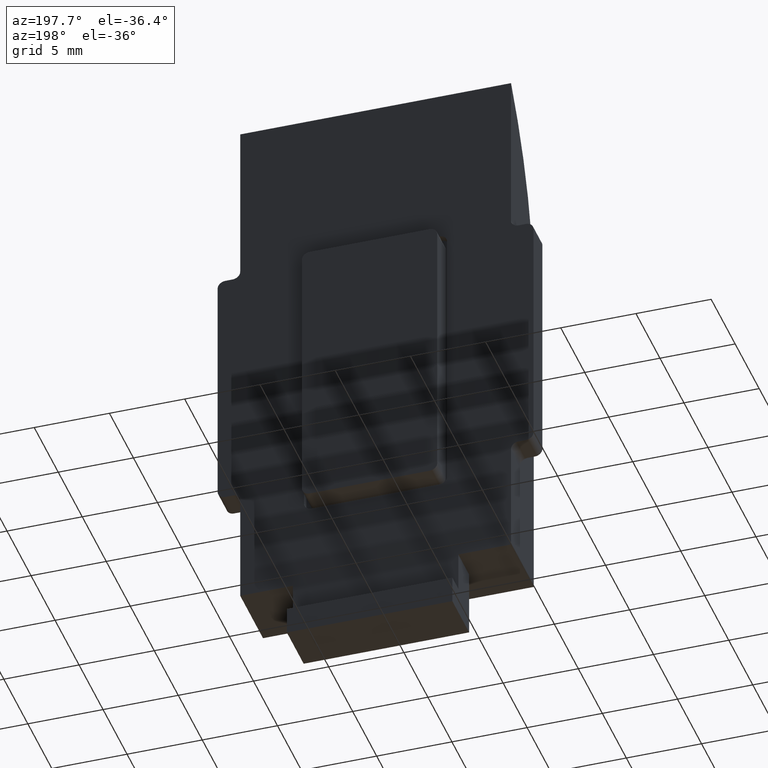
[diagram: clean part render]
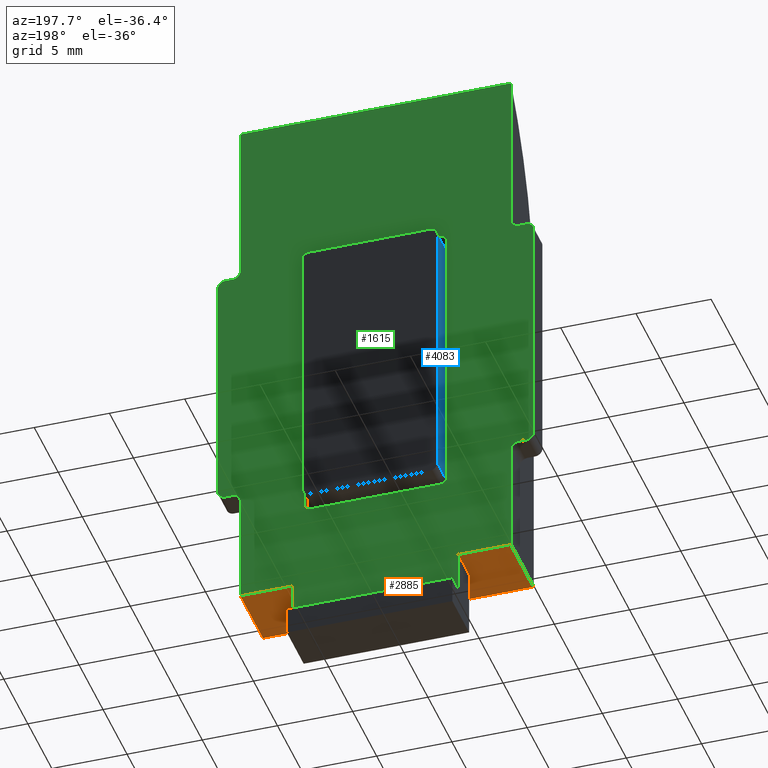
[diagram: same view with three faces highlighted in distinct colors, each labeled with its STEP entity id]
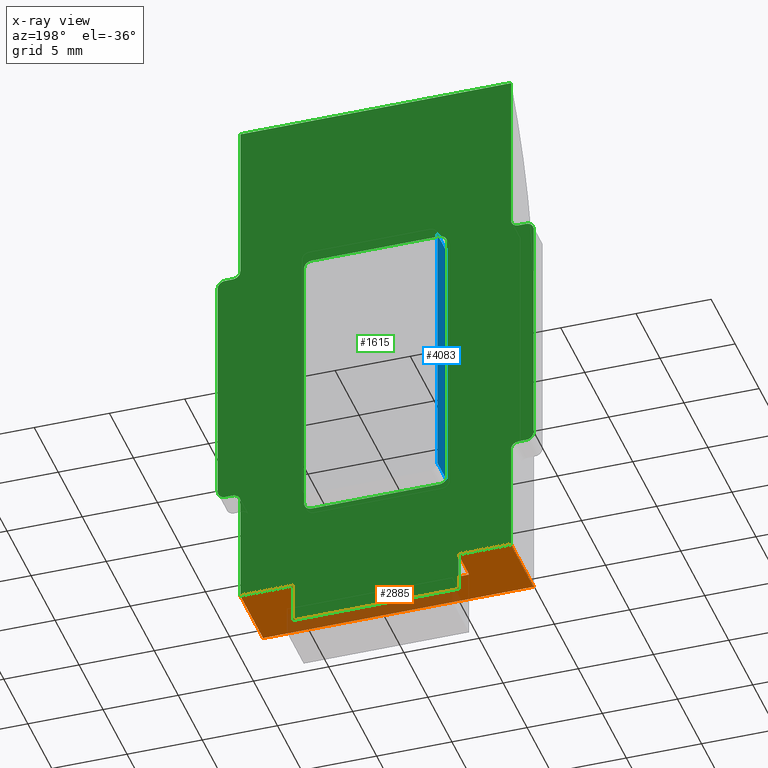
[diagram: x-ray of the same camera — body ghosted, the three highlighted faces saturated]
A machine part, auxiliary view with three faces highlighted in distinct colors.
The next image is the same camera in x-ray (body ghosted, the three faces saturated) — at least one of them is partly hidden behind the body in this view.
Their STEP definitions:

[orange] entity #2885 — the highlighted planar face has unit normal (0, 0, -1).
#481 = LINE ( 'NONE', #4974, #16344 ) ;
#509 = CARTESIAN_POINT ( 'NONE',  ( -9.000000000000000000, 4.750000000000001776, -2.081668171172168513E-14 ) ) ;
#701 = EDGE_CURVE ( 'NONE', #2868, #7485, #3738, .T. ) ;
#702 = CARTESIAN_POINT ( 'NONE',  ( 9.000000000000000000, -1.040834085586084257E-14, -2.081668171172168513E-14 ) ) ;
#1002 = EDGE_CURVE ( 'NONE', #3693, #3340, #9285, .T. ) ;
#1040 = ORIENTED_EDGE ( 'NONE', *, *, #1002, .F. ) ;
#1165 = ORIENTED_EDGE ( 'NONE', *, *, #1958, .T. ) ;
#1383 = LINE ( 'NONE', #5969, #11896 ) ;
#1570 = VECTOR ( 'NONE', #7535, 1000.000000000000000 ) ;
#1958 = EDGE_CURVE ( 'NONE', #3693, #13120, #481, .T. ) ;
#2824 = EDGE_CURVE ( 'NONE', #13120, #8429, #12193, .T. ) ;
#2868 = VERTEX_POINT ( 'NONE', #509 ) ;
#2885 = ADVANCED_FACE ( 'NONE', ( #16271 ), #11357, .T. ) ;
#3307 = VECTOR ( 'NONE', #15276, 1000.000000000000000 ) ;
#3340 = VERTEX_POINT ( 'NONE', #13775 ) ;
#3693 = VERTEX_POINT ( 'NONE', #9387 ) ;
#3738 = LINE ( 'NONE', #12935, #1570 ) ;
#3850 = EDGE_LOOP ( 'NONE', ( #8951, #17275, #12400, #1040, #1165, #9771, #11935, #11875 ) ) ;
#3880 = DIRECTION ( 'NONE',  ( -0.000000000000000000, 1.000000000000000000, 1.734723475976807094E-16 ) ) ;
#4051 = VECTOR ( 'NONE', #5568, 1000.000000000000000 ) ;
#4345 = DIRECTION ( 'NONE',  ( 1.000000000000000000, 0.000000000000000000, 0.000000000000000000 ) ) ;
#4526 = EDGE_CURVE ( 'NONE', #3340, #10327, #15337, .T. ) ;
#4589 = VECTOR ( 'NONE', #17804, 1000.000000000000000 ) ;
#4974 = CARTESIAN_POINT ( 'NONE',  ( 5.499999999999998224, -3.035766082959412415E-15, -2.081668171172168513E-14 ) ) ;
#5195 = CARTESIAN_POINT ( 'NONE',  ( 9.000000000000000000, 2.499999999999989342, -2.081668171172168513E-14 ) ) ;
#5537 = CARTESIAN_POINT ( 'NONE',  ( -9.000000000000000000, -1.040834085586084257E-14, -2.081668171172168513E-14 ) ) ;
#5568 = DIRECTION ( 'NONE',  ( 0.000000000000000000, -1.000000000000000000, -1.734723475976807094E-16 ) ) ;
#5969 = CARTESIAN_POINT ( 'NONE',  ( 9.000000000000000000, 4.750000000000001776, -2.081668171172168513E-14 ) ) ;
#6161 = DIRECTION ( 'NONE',  ( 0.000000000000000000, 1.000000000000000000, 1.734723475976807094E-16 ) ) ;
#6309 = CARTESIAN_POINT ( 'NONE',  ( -5.500000000000000000, 4.750000000000001776, -2.081668171172168513E-14 ) ) ;
#6794 = AXIS2_PLACEMENT_3D ( 'NONE', #12905, #11472, #6161 ) ;
#6948 = LINE ( 'NONE', #14081, #3307 ) ;
#7485 = VERTEX_POINT ( 'NONE', #5537 ) ;
#7535 = DIRECTION ( 'NONE',  ( 0.000000000000000000, -1.000000000000000000, -1.734723475976807094E-16 ) ) ;
#8361 = EDGE_CURVE ( 'NONE', #2868, #10327, #1383, .T. ) ;
#8429 = VERTEX_POINT ( 'NONE', #11546 ) ;
#8951 = ORIENTED_EDGE ( 'NONE', *, *, #701, .F. ) ;
#9285 = LINE ( 'NONE', #5195, #4589 ) ;
#9387 = CARTESIAN_POINT ( 'NONE',  ( 5.500000000000000000, 2.499999999999987566, -2.081668171172168513E-14 ) ) ;
#9771 = ORIENTED_EDGE ( 'NONE', *, *, #2824, .T. ) ;
#10327 = VERTEX_POINT ( 'NONE', #6309 ) ;
#10721 = CARTESIAN_POINT ( 'NONE',  ( 5.499999999999999112, 4.750000000000001776, -2.081668171172168513E-14 ) ) ;
#10806 = CARTESIAN_POINT ( 'NONE',  ( -5.500000000000000000, -1.734723475976807094E-15, -2.081668171172168513E-14 ) ) ;
#11357 = PLANE ( 'NONE',  #6794 ) ;
#11472 = DIRECTION ( 'NONE',  ( 0.000000000000000000, 1.734723475976807094E-16, -1.000000000000000000 ) ) ;
#11546 = CARTESIAN_POINT ( 'NONE',  ( 9.000000000000000000, 4.750000000000001776, -2.081668171172168513E-14 ) ) ;
#11875 = ORIENTED_EDGE ( 'NONE', *, *, #14453, .T. ) ;
#11896 = VECTOR ( 'NONE', #4345, 1000.000000000000000 ) ;
#11935 = ORIENTED_EDGE ( 'NONE', *, *, #12267, .T. ) ;
#12193 = LINE ( 'NONE', #16737, #16687 ) ;
#12267 = EDGE_CURVE ( 'NONE', #8429, #15376, #16694, .T. ) ;
#12400 = ORIENTED_EDGE ( 'NONE', *, *, #4526, .F. ) ;
#12905 = CARTESIAN_POINT ( 'NONE',  ( 9.000000000000000000, 0.000000000000000000, -2.081668171172168513E-14 ) ) ;
#12935 = CARTESIAN_POINT ( 'NONE',  ( -9.000000000000000000, 0.000000000000000000, -2.081668171172168513E-14 ) ) ;
#13120 = VERTEX_POINT ( 'NONE', #10721 ) ;
#13775 = CARTESIAN_POINT ( 'NONE',  ( -5.500000000000000000, 2.499999999999987566, -2.081668171172168513E-14 ) ) ;
#14081 = CARTESIAN_POINT ( 'NONE',  ( 9.000000000000000000, -1.040834085586084257E-14, -2.081668171172168513E-14 ) ) ;
#14453 = EDGE_CURVE ( 'NONE', #15376, #7485, #6948, .T. ) ;
#14477 = DIRECTION ( 'NONE',  ( 2.478176394252582127E-16, 1.000000000000000000, 1.734723475976807094E-16 ) ) ;
#15276 = DIRECTION ( 'NONE',  ( -1.000000000000000000, -0.000000000000000000, -0.000000000000000000 ) ) ;
#15337 = LINE ( 'NONE', #10806, #16653 ) ;
#15376 = VERTEX_POINT ( 'NONE', #702 ) ;
#16271 = FACE_OUTER_BOUND ( 'NONE', #3850, .T. ) ;
#16344 = VECTOR ( 'NONE', #14477, 1000.000000000000000 ) ;
#16653 = VECTOR ( 'NONE', #3880, 1000.000000000000000 ) ;
#16682 = DIRECTION ( 'NONE',  ( 1.000000000000000000, 0.000000000000000000, 0.000000000000000000 ) ) ;
#16687 = VECTOR ( 'NONE', #16682, 1000.000000000000000 ) ;
#16694 = LINE ( 'NONE', #16713, #4051 ) ;
#16713 = CARTESIAN_POINT ( 'NONE',  ( 9.000000000000000000, 0.000000000000000000, -2.081668171172168513E-14 ) ) ;
#16737 = CARTESIAN_POINT ( 'NONE',  ( 9.000000000000000000, 4.750000000000001776, -2.081668171172168513E-14 ) ) ;
#17275 = ORIENTED_EDGE ( 'NONE', *, *, #8361, .T. ) ;
#17804 = DIRECTION ( 'NONE',  ( -1.000000000000000000, -0.000000000000000000, -0.000000000000000000 ) ) ;

[blue] entity #4083 — the highlighted planar face has unit normal (1, 0, 0).
#72 = EDGE_CURVE ( 'NONE', #449, #2540, #15301, .T. ) ;
#102 = LINE ( 'NONE', #10053, #14220 ) ;
#449 = VERTEX_POINT ( 'NONE', #10130 ) ;
#1445 = DIRECTION ( 'NONE',  ( -0.000000000000000000, -0.000000000000000000, 1.000000000000000000 ) ) ;
#2295 = DIRECTION ( 'NONE',  ( 0.000000000000000000, 0.000000000000000000, 1.000000000000000000 ) ) ;
#2380 = CARTESIAN_POINT ( 'NONE',  ( 18.50000000000000000, 0.000000000000000000, 0.000000000000000000 ) ) ;
#2540 = VERTEX_POINT ( 'NONE', #2380 ) ;
#2641 = CARTESIAN_POINT ( 'NONE',  ( 18.50000000000000000, 0.000000000000000000, 1.750000000000001554 ) ) ;
#3442 = EDGE_LOOP ( 'NONE', ( #3901, #7501, #12306, #7272 ) ) ;
#3901 = ORIENTED_EDGE ( 'NONE', *, *, #72, .T. ) ;
#4083 = ADVANCED_FACE ( 'NONE', ( #12384 ), #14480, .F. ) ;
#5047 = VECTOR ( 'NONE', #17118, 1000.000000000000000 ) ;
#5903 = VERTEX_POINT ( 'NONE', #2641 ) ;
#6310 = CARTESIAN_POINT ( 'NONE',  ( 0.000000000000000000, 0.000000000000000000, 1.749999999999999778 ) ) ;
#7272 = ORIENTED_EDGE ( 'NONE', *, *, #7977, .T. ) ;
#7423 = DIRECTION ( 'NONE',  ( 1.000000000000000000, 0.000000000000000000, 0.000000000000000000 ) ) ;
#7454 = CARTESIAN_POINT ( 'NONE',  ( 0.000000000000000000, 0.000000000000000000, 0.000000000000000000 ) ) ;
#7501 = ORIENTED_EDGE ( 'NONE', *, *, #13539, .T. ) ;
#7977 = EDGE_CURVE ( 'NONE', #10451, #449, #13826, .T. ) ;
#9036 = DIRECTION ( 'NONE',  ( 0.000000000000000000, 1.000000000000000000, 0.000000000000000000 ) ) ;
#10053 = CARTESIAN_POINT ( 'NONE',  ( 0.000000000000000000, 0.000000000000000000, 1.749999999999999778 ) ) ;
#10130 = CARTESIAN_POINT ( 'NONE',  ( 0.5000000000000004441, 0.000000000000000000, 0.000000000000000000 ) ) ;
#10451 = VERTEX_POINT ( 'NONE', #16234 ) ;
#11742 = CARTESIAN_POINT ( 'NONE',  ( 0.5000000000000004441, 0.000000000000000000, 1.749999999999999778 ) ) ;
#11901 = LINE ( 'NONE', #14906, #12739 ) ;
#12306 = ORIENTED_EDGE ( 'NONE', *, *, #13919, .F. ) ;
#12384 = FACE_OUTER_BOUND ( 'NONE', #3442, .T. ) ;
#12739 = VECTOR ( 'NONE', #1445, 1000.000000000000000 ) ;
#13539 = EDGE_CURVE ( 'NONE', #2540, #5903, #11901, .T. ) ;
#13826 = LINE ( 'NONE', #11742, #15311 ) ;
#13919 = EDGE_CURVE ( 'NONE', #10451, #5903, #102, .T. ) ;
#14220 = VECTOR ( 'NONE', #7423, 1000.000000000000000 ) ;
#14480 = PLANE ( 'NONE',  #15016 ) ;
#14906 = CARTESIAN_POINT ( 'NONE',  ( 18.50000000000000000, 0.000000000000000000, 1.750000000000001554 ) ) ;
#15016 = AXIS2_PLACEMENT_3D ( 'NONE', #6310, #9036, #2295 ) ;
#15301 = LINE ( 'NONE', #7454, #5047 ) ;
#15311 = VECTOR ( 'NONE', #15860, 1000.000000000000000 ) ;
#15860 = DIRECTION ( 'NONE',  ( 0.000000000000000000, 0.000000000000000000, -1.000000000000000000 ) ) ;
#16234 = CARTESIAN_POINT ( 'NONE',  ( 0.5000000000000004441, 0.000000000000000000, 1.749999999999999778 ) ) ;
#17118 = DIRECTION ( 'NONE',  ( 1.000000000000000000, 0.000000000000000000, 0.000000000000000000 ) ) ;

[green] entity #1615 — the highlighted planar face has unit normal (0, -1, -0).
#187 = CARTESIAN_POINT ( 'NONE',  ( 9.999999999999998224, 4.749999999999999112, 24.49999999999997513 ) ) ;
#274 = VERTEX_POINT ( 'NONE', #1450 ) ;
#290 = VECTOR ( 'NONE', #16337, 1000.000000000000000 ) ;
#314 = VERTEX_POINT ( 'NONE', #4382 ) ;
#320 = CARTESIAN_POINT ( 'NONE',  ( -4.250000000000000000, 4.750000000000001776, 5.799999999999978506 ) ) ;
#475 = CARTESIAN_POINT ( 'NONE',  ( -9.000000000000000000, 4.749999999999997335, 36.29999999999999716 ) ) ;
#484 = VERTEX_POINT ( 'NONE', #11585 ) ;
#509 = CARTESIAN_POINT ( 'NONE',  ( -9.000000000000000000, 4.750000000000001776, -2.081668171172168513E-14 ) ) ;
#575 = ORIENTED_EDGE ( 'NONE', *, *, #13494, .F. ) ;
#767 = AXIS2_PLACEMENT_3D ( 'NONE', #3194, #9885, #11285 ) ;
#827 = CARTESIAN_POINT ( 'NONE',  ( -9.500000000000000000, 4.749999999999999112, 25.49999999999997868 ) ) ;
#900 = AXIS2_PLACEMENT_3D ( 'NONE', #7383, #1865, #8801 ) ;
#914 = DIRECTION ( 'NONE',  ( 0.000000000000000000, -1.000000000000000000, -1.112002228190260459E-16 ) ) ;
#930 = VECTOR ( 'NONE', #5937, 1000.000000000000000 ) ;
#959 = CIRCLE ( 'NONE', #1093, 0.5000000000000004441 ) ;
#963 = DIRECTION ( 'NONE',  ( 0.000000000000000000, -1.000000000000000000, -1.112002228190260459E-16 ) ) ;
#1000 = EDGE_CURVE ( 'NONE', #9279, #9805, #6098, .T. ) ;
#1093 = AXIS2_PLACEMENT_3D ( 'NONE', #13729, #5534, #15106 ) ;
#1149 = EDGE_CURVE ( 'NONE', #14753, #4298, #9064, .T. ) ;
#1158 = DIRECTION ( 'NONE',  ( 1.047180315457801829E-31, -1.112002228190260459E-16, 1.000000000000000000 ) ) ;
#1383 = LINE ( 'NONE', #5969, #11896 ) ;
#1450 = CARTESIAN_POINT ( 'NONE',  ( 4.249999999999998224, 4.750000000000001776, 5.799999999999978506 ) ) ;
#1547 = CARTESIAN_POINT ( 'NONE',  ( -10.49999999999999822, 4.749999999999995559, 24.49999999999997513 ) ) ;
#1549 = EDGE_CURVE ( 'NONE', #12150, #3029, #9468, .T. ) ;
#1576 = CIRCLE ( 'NONE', #2384, 0.5000000000000004441 ) ;
#1587 = ORIENTED_EDGE ( 'NONE', *, *, #2263, .T. ) ;
#1601 = VECTOR ( 'NONE', #13425, 1000.000000000000000 ) ;
#1615 = ADVANCED_FACE ( 'NONE', ( #16341, #15907 ), #3801, .F. ) ;
#1626 = LINE ( 'NONE', #13249, #12993 ) ;
#1660 = EDGE_CURVE ( 'NONE', #12150, #13120, #14607, .T. ) ;
#1749 = CIRCLE ( 'NONE', #17745, 0.5000000000000004441 ) ;
#1762 = VERTEX_POINT ( 'NONE', #15375 ) ;
#1865 = DIRECTION ( 'NONE',  ( 0.000000000000000000, -1.000000000000000000, -1.112002228190260459E-16 ) ) ;
#2085 = EDGE_LOOP ( 'NONE', ( #7908, #9754, #13382, #2205, #17136, #12368, #8657, #9133 ) ) ;
#2125 = ORIENTED_EDGE ( 'NONE', *, *, #2824, .F. ) ;
#2188 = ORIENTED_EDGE ( 'NONE', *, *, #8361, .F. ) ;
#2205 = ORIENTED_EDGE ( 'NONE', *, *, #12142, .T. ) ;
#2238 = DIRECTION ( 'NONE',  ( -1.000000000000000000, -0.000000000000000000, -0.000000000000000000 ) ) ;
#2263 = EDGE_CURVE ( 'NONE', #7452, #11304, #9211, .T. ) ;
#2270 = ORIENTED_EDGE ( 'NONE', *, *, #17721, .T. ) ;
#2296 = CARTESIAN_POINT ( 'NONE',  ( -10.49999999999999822, 4.749999999999995559, 8.499999999999976907 ) ) ;
#2353 = DIRECTION ( 'NONE',  ( 0.000000000000000000, 0.000000000000000000, -1.000000000000000000 ) ) ;
#2384 = AXIS2_PLACEMENT_3D ( 'NONE', #187, #15315, #9938 ) ;
#2408 = VERTEX_POINT ( 'NONE', #3339 ) ;
#2438 = LINE ( 'NONE', #13627, #14820 ) ;
#2493 = DIRECTION ( 'NONE',  ( 0.000000000000000000, 0.000000000000000000, 1.000000000000000000 ) ) ;
#2693 = ORIENTED_EDGE ( 'NONE', *, *, #12357, .F. ) ;
#2791 = CARTESIAN_POINT ( 'NONE',  ( 10.49999999999999822, 4.749999999999995559, 24.49999999999997513 ) ) ;
#2808 = ORIENTED_EDGE ( 'NONE', *, *, #16944, .T. ) ;
#2824 = EDGE_CURVE ( 'NONE', #13120, #8429, #12193, .T. ) ;
#2851 = VECTOR ( 'NONE', #13575, 1000.000000000000000 ) ;
#2868 = VERTEX_POINT ( 'NONE', #509 ) ;
#2923 = VECTOR ( 'NONE', #11733, 1000.000000000000000 ) ;
#3029 = VERTEX_POINT ( 'NONE', #3681 ) ;
#3043 = CARTESIAN_POINT ( 'NONE',  ( 10.49999999999999822, 4.749999999999995559, 8.499999999999976907 ) ) ;
#3167 = EDGE_CURVE ( 'NONE', #10099, #314, #13030, .T. ) ;
#3194 = CARTESIAN_POINT ( 'NONE',  ( 9.500000000000000000, 4.749999999999999112, 25.49999999999997868 ) ) ;
#3339 = CARTESIAN_POINT ( 'NONE',  ( 4.249999999999998224, 4.750000000000002665, 25.29999999999997939 ) ) ;
#3372 = ORIENTED_EDGE ( 'NONE', *, *, #16704, .T. ) ;
#3538 = CARTESIAN_POINT ( 'NONE',  ( 9.000000000000000000, 4.750000000000001776, 0.000000000000000000 ) ) ;
#3610 = CARTESIAN_POINT ( 'NONE',  ( 4.249999999999998224, 4.750000000000000888, 6.299999999999979394 ) ) ;
#3678 = ORIENTED_EDGE ( 'NONE', *, *, #15695, .T. ) ;
#3681 = CARTESIAN_POINT ( 'NONE',  ( -5.500000000000000000, 4.750000000000001776, -2.700000000000021938 ) ) ;
#3737 = ORIENTED_EDGE ( 'NONE', *, *, #1000, .F. ) ;
#3767 = ORIENTED_EDGE ( 'NONE', *, *, #1660, .F. ) ;
#3801 = PLANE ( 'NONE',  #4472 ) ;
#3837 = CARTESIAN_POINT ( 'NONE',  ( 9.000000000000000000, 4.750000000000001776, 0.000000000000000000 ) ) ;
#3872 = CARTESIAN_POINT ( 'NONE',  ( -10.49999999999999822, 4.749999999999995559, 7.999999999999976019 ) ) ;
#3944 = LINE ( 'NONE', #13400, #290 ) ;
#4014 = CARTESIAN_POINT ( 'NONE',  ( 9.500000000000000000, 4.749999999999995559, 24.99999999999997868 ) ) ;
#4049 = CARTESIAN_POINT ( 'NONE',  ( 5.500000000000000000, 4.750000000000001776, -2.700000000000021938 ) ) ;
#4298 = VERTEX_POINT ( 'NONE', #9918 ) ;
#4345 = DIRECTION ( 'NONE',  ( 1.000000000000000000, 0.000000000000000000, 0.000000000000000000 ) ) ;
#4382 = CARTESIAN_POINT ( 'NONE',  ( 9.000000000000000000, 4.750000000000000888, 7.499999999999975131 ) ) ;
#4472 = AXIS2_PLACEMENT_3D ( 'NONE', #5114, #914, #12116 ) ;
#4528 = CIRCLE ( 'NONE', #10627, 0.5000000000000004441 ) ;
#4592 = CARTESIAN_POINT ( 'NONE',  ( -9.999999999999998224, 4.750000000000000888, 8.499999999999976907 ) ) ;
#4655 = CARTESIAN_POINT ( 'NONE',  ( -9.000000000000000000, 4.750000000000001776, 0.000000000000000000 ) ) ;
#4790 = LINE ( 'NONE', #5998, #930 ) ;
#4857 = EDGE_CURVE ( 'NONE', #7805, #7403, #14892, .T. ) ;
#4959 = EDGE_CURVE ( 'NONE', #9805, #6198, #1626, .T. ) ;
#4984 = DIRECTION ( 'NONE',  ( 0.000000000000000000, -1.000000000000000000, -1.112002228190260459E-16 ) ) ;
#5110 = ORIENTED_EDGE ( 'NONE', *, *, #14557, .T. ) ;
#5114 = CARTESIAN_POINT ( 'NONE',  ( 9.000000000000000000, 4.750000000000001776, 0.000000000000000000 ) ) ;
#5445 = EDGE_CURVE ( 'NONE', #11304, #14753, #2438, .T. ) ;
#5534 = DIRECTION ( 'NONE',  ( 0.000000000000000000, -1.000000000000000000, -1.112002228190260459E-16 ) ) ;
#5655 = VERTEX_POINT ( 'NONE', #8677 ) ;
#5732 = VECTOR ( 'NONE', #14332, 1000.000000000000000 ) ;
#5789 = DIRECTION ( 'NONE',  ( -0.000000000000000000, 1.000000000000000000, 1.112002228190260459E-16 ) ) ;
#5838 = VECTOR ( 'NONE', #7733, 1000.000000000000000 ) ;
#5900 = VERTEX_POINT ( 'NONE', #9330 ) ;
#5929 = VERTEX_POINT ( 'NONE', #4014 ) ;
#5937 = DIRECTION ( 'NONE',  ( -1.000000000000000000, -0.000000000000000000, -0.000000000000000000 ) ) ;
#5969 = CARTESIAN_POINT ( 'NONE',  ( 9.000000000000000000, 4.750000000000001776, -2.081668171172168513E-14 ) ) ;
#5998 = CARTESIAN_POINT ( 'NONE',  ( -4.750000000000000888, 4.750000000000001776, 5.799999999999978506 ) ) ;
#6098 = LINE ( 'NONE', #3837, #6726 ) ;
#6126 = CARTESIAN_POINT ( 'NONE',  ( -9.000000000000000000, 4.749999999999999112, 25.49999999999997868 ) ) ;
#6142 = ORIENTED_EDGE ( 'NONE', *, *, #13971, .T. ) ;
#6151 = VERTEX_POINT ( 'NONE', #6126 ) ;
#6198 = VERTEX_POINT ( 'NONE', #475 ) ;
#6286 = ORIENTED_EDGE ( 'NONE', *, *, #5445, .T. ) ;
#6309 = CARTESIAN_POINT ( 'NONE',  ( -5.500000000000000000, 4.750000000000001776, -2.081668171172168513E-14 ) ) ;
#6562 = LINE ( 'NONE', #3872, #1601 ) ;
#6615 = EDGE_CURVE ( 'NONE', #2868, #17081, #9798, .T. ) ;
#6621 = CARTESIAN_POINT ( 'NONE',  ( 9.500000000000000000, 4.750000000000000888, 7.499999999999975131 ) ) ;
#6726 = VECTOR ( 'NONE', #13631, 1000.000000000000000 ) ;
#6761 = CARTESIAN_POINT ( 'NONE',  ( 9.999999999999998224, 4.749999999999995559, 7.999999999999976019 ) ) ;
#6780 = CARTESIAN_POINT ( 'NONE',  ( -4.250000000000000000, 4.750000000000002665, 25.29999999999997939 ) ) ;
#6970 = EDGE_CURVE ( 'NONE', #7389, #5900, #12792, .T. ) ;
#7023 = LINE ( 'NONE', #15601, #8505 ) ;
#7061 = AXIS2_PLACEMENT_3D ( 'NONE', #827, #14522, #11849 ) ;
#7341 = DIRECTION ( 'NONE',  ( -0.000000000000000000, 1.000000000000000000, 1.112002228190260459E-16 ) ) ;
#7383 = CARTESIAN_POINT ( 'NONE',  ( -9.500000000000000000, 4.750000000000000888, 7.499999999999975131 ) ) ;
#7389 = VERTEX_POINT ( 'NONE', #17793 ) ;
#7403 = VERTEX_POINT ( 'NONE', #2791 ) ;
#7452 = VERTEX_POINT ( 'NONE', #16507 ) ;
#7503 = ORIENTED_EDGE ( 'NONE', *, *, #4857, .F. ) ;
#7733 = DIRECTION ( 'NONE',  ( -1.000000000000000000, -0.000000000000000000, -0.000000000000000000 ) ) ;
#7774 = CARTESIAN_POINT ( 'NONE',  ( -4.250000000000000000, 4.749999999999999112, 24.79999999999997939 ) ) ;
#7805 = VERTEX_POINT ( 'NONE', #3043 ) ;
#7908 = ORIENTED_EDGE ( 'NONE', *, *, #10209, .F. ) ;
#7969 = DIRECTION ( 'NONE',  ( 0.000000000000000000, -1.000000000000000000, -1.112002228190260459E-16 ) ) ;
#8033 = DIRECTION ( 'NONE',  ( 0.000000000000000000, 0.000000000000000000, -1.000000000000000000 ) ) ;
#8095 = VERTEX_POINT ( 'NONE', #6761 ) ;
#8124 = LINE ( 'NONE', #3538, #13900 ) ;
#8170 = CARTESIAN_POINT ( 'NONE',  ( -4.250000000000000000, 4.750000000000000888, 6.299999999999979394 ) ) ;
#8313 = CARTESIAN_POINT ( 'NONE',  ( 4.749999999999999112, 4.750000000000002665, 24.79999999999997939 ) ) ;
#8333 = AXIS2_PLACEMENT_3D ( 'NONE', #9639, #11028, #9580 ) ;
#8361 = EDGE_CURVE ( 'NONE', #2868, #10327, #1383, .T. ) ;
#8429 = VERTEX_POINT ( 'NONE', #11546 ) ;
#8505 = VECTOR ( 'NONE', #17005, 1000.000000000000000 ) ;
#8657 = ORIENTED_EDGE ( 'NONE', *, *, #6970, .F. ) ;
#8663 = DIRECTION ( 'NONE',  ( 1.000000000000000000, 0.000000000000000000, 0.000000000000000000 ) ) ;
#8675 = LINE ( 'NONE', #15904, #2923 ) ;
#8677 = CARTESIAN_POINT ( 'NONE',  ( 4.749999999999999112, 4.750000000000001776, 6.299999999999979394 ) ) ;
#8801 = DIRECTION ( 'NONE',  ( 0.000000000000000000, 0.000000000000000000, -1.000000000000000000 ) ) ;
#8866 = AXIS2_PLACEMENT_3D ( 'NONE', #3610, #4984, #13354 ) ;
#8901 = EDGE_CURVE ( 'NONE', #274, #5655, #17679, .T. ) ;
#8986 = VERTEX_POINT ( 'NONE', #6780 ) ;
#9064 = CIRCLE ( 'NONE', #11830, 0.5000000000000004441 ) ;
#9071 = ORIENTED_EDGE ( 'NONE', *, *, #4959, .F. ) ;
#9133 = ORIENTED_EDGE ( 'NONE', *, *, #10514, .T. ) ;
#9211 = CIRCLE ( 'NONE', #13084, 0.5000000000000004441 ) ;
#9279 = VERTEX_POINT ( 'NONE', #13262 ) ;
#9330 = CARTESIAN_POINT ( 'NONE',  ( -4.750000000000000888, 4.750000000000002665, 24.79999999999997939 ) ) ;
#9341 = CARTESIAN_POINT ( 'NONE',  ( 5.500000000000000000, 4.750000000000001776, 0.000000000000000000 ) ) ;
#9468 = LINE ( 'NONE', #9948, #5838 ) ;
#9580 = DIRECTION ( 'NONE',  ( 0.000000000000000000, 0.000000000000000000, -1.000000000000000000 ) ) ;
#9639 = CARTESIAN_POINT ( 'NONE',  ( 9.999999999999998224, 4.750000000000000888, 8.499999999999976907 ) ) ;
#9662 = ORIENTED_EDGE ( 'NONE', *, *, #14662, .F. ) ;
#9739 = EDGE_CURVE ( 'NONE', #14810, #5655, #15042, .T. ) ;
#9754 = ORIENTED_EDGE ( 'NONE', *, *, #8901, .T. ) ;
#9798 = LINE ( 'NONE', #4655, #5732 ) ;
#9805 = VERTEX_POINT ( 'NONE', #12869 ) ;
#9885 = DIRECTION ( 'NONE',  ( 0.000000000000000000, -1.000000000000000000, -1.112002228190260459E-16 ) ) ;
#9906 = DIRECTION ( 'NONE',  ( 0.000000000000000000, 0.000000000000000000, -1.000000000000000000 ) ) ;
#9911 = LINE ( 'NONE', #13027, #17232 ) ;
#9918 = CARTESIAN_POINT ( 'NONE',  ( -9.999999999999998224, 4.749999999999995559, 24.99999999999997868 ) ) ;
#9938 = DIRECTION ( 'NONE',  ( 0.000000000000000000, 0.000000000000000000, -1.000000000000000000 ) ) ;
#9948 = CARTESIAN_POINT ( 'NONE',  ( 9.000000000000000000, 4.750000000000001776, -2.700000000000021938 ) ) ;
#10077 = DIRECTION ( 'NONE',  ( -0.000000000000000000, -0.000000000000000000, 1.000000000000000000 ) ) ;
#10099 = VERTEX_POINT ( 'NONE', #16597 ) ;
#10134 = CIRCLE ( 'NONE', #900, 0.5000000000000004441 ) ;
#10209 = EDGE_CURVE ( 'NONE', #274, #10837, #4790, .T. ) ;
#10231 = VECTOR ( 'NONE', #13913, 1000.000000000000000 ) ;
#10241 = CARTESIAN_POINT ( 'NONE',  ( -5.500000000000000000, 4.750000000000001776, 0.000000000000000000 ) ) ;
#10327 = VERTEX_POINT ( 'NONE', #6309 ) ;
#10514 = EDGE_CURVE ( 'NONE', #7389, #10837, #1749, .T. ) ;
#10618 = CIRCLE ( 'NONE', #7061, 0.5000000000000004441 ) ;
#10627 = AXIS2_PLACEMENT_3D ( 'NONE', #7774, #963, #2353 ) ;
#10684 = CARTESIAN_POINT ( 'NONE',  ( -9.500000000000000000, 4.749999999999995559, 7.999999999999976019 ) ) ;
#10721 = CARTESIAN_POINT ( 'NONE',  ( 5.499999999999999112, 4.750000000000001776, -2.081668171172168513E-14 ) ) ;
#10756 = CIRCLE ( 'NONE', #8333, 0.5000000000000004441 ) ;
#10837 = VERTEX_POINT ( 'NONE', #320 ) ;
#10989 = VECTOR ( 'NONE', #1158, 1000.000000000000000 ) ;
#11028 = DIRECTION ( 'NONE',  ( -0.000000000000000000, 1.000000000000000000, 1.112002228190260459E-16 ) ) ;
#11285 = DIRECTION ( 'NONE',  ( 0.000000000000000000, 0.000000000000000000, -1.000000000000000000 ) ) ;
#11304 = VERTEX_POINT ( 'NONE', #2296 ) ;
#11305 = EDGE_CURVE ( 'NONE', #8986, #5900, #4528, .T. ) ;
#11482 = DIRECTION ( 'NONE',  ( 0.000000000000000000, 0.000000000000000000, -1.000000000000000000 ) ) ;
#11546 = CARTESIAN_POINT ( 'NONE',  ( 9.000000000000000000, 4.750000000000001776, -2.081668171172168513E-14 ) ) ;
#11585 = CARTESIAN_POINT ( 'NONE',  ( 9.999999999999998224, 4.749999999999995559, 24.99999999999997868 ) ) ;
#11676 = LINE ( 'NONE', #12409, #14448 ) ;
#11733 = DIRECTION ( 'NONE',  ( 0.000000000000000000, -1.112002228190260459E-16, 1.000000000000000000 ) ) ;
#11830 = AXIS2_PLACEMENT_3D ( 'NONE', #12611, #7341, #11482 ) ;
#11849 = DIRECTION ( 'NONE',  ( 0.000000000000000000, 0.000000000000000000, -1.000000000000000000 ) ) ;
#11896 = VECTOR ( 'NONE', #4345, 1000.000000000000000 ) ;
#12116 = DIRECTION ( 'NONE',  ( 0.000000000000000000, 1.112002228190260459E-16, -1.000000000000000000 ) ) ;
#12142 = EDGE_CURVE ( 'NONE', #14810, #2408, #959, .T. ) ;
#12150 = VERTEX_POINT ( 'NONE', #4049 ) ;
#12193 = LINE ( 'NONE', #16737, #16687 ) ;
#12330 = EDGE_CURVE ( 'NONE', #8986, #2408, #11676, .T. ) ;
#12357 = EDGE_CURVE ( 'NONE', #8429, #314, #8124, .T. ) ;
#12368 = ORIENTED_EDGE ( 'NONE', *, *, #11305, .T. ) ;
#12409 = CARTESIAN_POINT ( 'NONE',  ( -4.750000000000000888, 4.750000000000002665, 25.29999999999997939 ) ) ;
#12611 = CARTESIAN_POINT ( 'NONE',  ( -9.999999999999998224, 4.749999999999999112, 24.49999999999997513 ) ) ;
#12622 = EDGE_CURVE ( 'NONE', #8095, #10099, #7023, .T. ) ;
#12659 = ORIENTED_EDGE ( 'NONE', *, *, #12622, .T. ) ;
#12731 = CARTESIAN_POINT ( 'NONE',  ( -4.750000000000000888, 4.750000000000002665, 25.29999999999997939 ) ) ;
#12792 = LINE ( 'NONE', #12731, #10231 ) ;
#12842 = EDGE_CURVE ( 'NONE', #6151, #6198, #8675, .T. ) ;
#12869 = CARTESIAN_POINT ( 'NONE',  ( 9.000000000000000000, 4.749999999999997335, 36.29999999999999716 ) ) ;
#12930 = DIRECTION ( 'NONE',  ( 0.000000000000000000, -1.112002228190260459E-16, 1.000000000000000000 ) ) ;
#12993 = VECTOR ( 'NONE', #2238, 1000.000000000000000 ) ;
#13027 = CARTESIAN_POINT ( 'NONE',  ( -10.49999999999999822, 4.749999999999995559, 24.99999999999997868 ) ) ;
#13030 = CIRCLE ( 'NONE', #17484, 0.5000000000000004441 ) ;
#13084 = AXIS2_PLACEMENT_3D ( 'NONE', #4592, #5789, #9906 ) ;
#13120 = VERTEX_POINT ( 'NONE', #10721 ) ;
#13214 = ORIENTED_EDGE ( 'NONE', *, *, #1549, .T. ) ;
#13249 = CARTESIAN_POINT ( 'NONE',  ( 9.000000000000000000, 4.749999999999997335, 36.29999999999999716 ) ) ;
#13262 = CARTESIAN_POINT ( 'NONE',  ( 9.000000000000000000, 4.749999999999999112, 25.49999999999997868 ) ) ;
#13354 = DIRECTION ( 'NONE',  ( 0.000000000000000000, 0.000000000000000000, -1.000000000000000000 ) ) ;
#13382 = ORIENTED_EDGE ( 'NONE', *, *, #9739, .F. ) ;
#13400 = CARTESIAN_POINT ( 'NONE',  ( 10.49999999999999822, 4.749999999999995559, 24.99999999999997868 ) ) ;
#13425 = DIRECTION ( 'NONE',  ( 1.000000000000000000, -0.000000000000000000, -0.000000000000000000 ) ) ;
#13494 = EDGE_CURVE ( 'NONE', #7452, #15986, #6562, .T. ) ;
#13575 = DIRECTION ( 'NONE',  ( 0.000000000000000000, -4.448008912761044053E-17, -1.000000000000000000 ) ) ;
#13609 = EDGE_LOOP ( 'NONE', ( #6286, #14640, #3372, #6142, #15365, #9071, #3737, #3678, #9662, #5110, #7503, #2270, #12659, #14426, #2693, #2125, #3767, #13214, #15156, #2188, #16609, #2808, #575, #1587 ) ) ;
#13627 = CARTESIAN_POINT ( 'NONE',  ( -10.49999999999999822, 4.749999999999995559, 24.99999999999997868 ) ) ;
#13631 = DIRECTION ( 'NONE',  ( 0.000000000000000000, -1.112002228190260459E-16, 1.000000000000000000 ) ) ;
#13641 = CARTESIAN_POINT ( 'NONE',  ( 4.749999999999999112, 4.750000000000002665, 25.29999999999997939 ) ) ;
#13729 = CARTESIAN_POINT ( 'NONE',  ( 4.249999999999998224, 4.749999999999999112, 24.79999999999997939 ) ) ;
#13800 = VECTOR ( 'NONE', #12930, 1000.000000000000000 ) ;
#13900 = VECTOR ( 'NONE', #17086, 1000.000000000000000 ) ;
#13913 = DIRECTION ( 'NONE',  ( -0.000000000000000000, 4.448008912761044053E-17, 1.000000000000000000 ) ) ;
#13921 = EDGE_CURVE ( 'NONE', #3029, #10327, #16178, .T. ) ;
#13971 = EDGE_CURVE ( 'NONE', #1762, #6151, #10618, .T. ) ;
#14332 = DIRECTION ( 'NONE',  ( 0.000000000000000000, -1.112002228190260459E-16, 1.000000000000000000 ) ) ;
#14426 = ORIENTED_EDGE ( 'NONE', *, *, #3167, .T. ) ;
#14448 = VECTOR ( 'NONE', #8663, 1000.000000000000000 ) ;
#14522 = DIRECTION ( 'NONE',  ( 0.000000000000000000, -1.000000000000000000, -1.112002228190260459E-16 ) ) ;
#14557 = EDGE_CURVE ( 'NONE', #484, #7403, #1576, .T. ) ;
#14607 = LINE ( 'NONE', #9341, #10989 ) ;
#14640 = ORIENTED_EDGE ( 'NONE', *, *, #1149, .T. ) ;
#14662 = EDGE_CURVE ( 'NONE', #484, #5929, #3944, .T. ) ;
#14753 = VERTEX_POINT ( 'NONE', #1547 ) ;
#14810 = VERTEX_POINT ( 'NONE', #8313 ) ;
#14820 = VECTOR ( 'NONE', #2493, 1000.000000000000000 ) ;
#14892 = LINE ( 'NONE', #15504, #16637 ) ;
#14997 = DIRECTION ( 'NONE',  ( 0.000000000000000000, 0.000000000000000000, -1.000000000000000000 ) ) ;
#15042 = LINE ( 'NONE', #13641, #2851 ) ;
#15106 = DIRECTION ( 'NONE',  ( 0.000000000000000000, 0.000000000000000000, -1.000000000000000000 ) ) ;
#15125 = DIRECTION ( 'NONE',  ( 0.000000000000000000, -1.000000000000000000, -1.112002228190260459E-16 ) ) ;
#15156 = ORIENTED_EDGE ( 'NONE', *, *, #13921, .T. ) ;
#15315 = DIRECTION ( 'NONE',  ( -0.000000000000000000, 1.000000000000000000, 1.112002228190260459E-16 ) ) ;
#15365 = ORIENTED_EDGE ( 'NONE', *, *, #12842, .T. ) ;
#15375 = CARTESIAN_POINT ( 'NONE',  ( -9.500000000000000000, 4.749999999999995559, 24.99999999999997868 ) ) ;
#15504 = CARTESIAN_POINT ( 'NONE',  ( 10.49999999999999822, 4.749999999999995559, 24.99999999999997868 ) ) ;
#15601 = CARTESIAN_POINT ( 'NONE',  ( 10.49999999999999822, 4.749999999999995559, 7.999999999999976019 ) ) ;
#15695 = EDGE_CURVE ( 'NONE', #9279, #5929, #16171, .T. ) ;
#15904 = CARTESIAN_POINT ( 'NONE',  ( -9.000000000000000000, 4.750000000000001776, 0.000000000000000000 ) ) ;
#15907 = FACE_OUTER_BOUND ( 'NONE', #13609, .T. ) ;
#15986 = VERTEX_POINT ( 'NONE', #10684 ) ;
#16171 = CIRCLE ( 'NONE', #767, 0.5000000000000004441 ) ;
#16178 = LINE ( 'NONE', #10241, #13800 ) ;
#16337 = DIRECTION ( 'NONE',  ( -1.000000000000000000, -0.000000000000000000, -0.000000000000000000 ) ) ;
#16341 = FACE_BOUND ( 'NONE', #2085, .T. ) ;
#16507 = CARTESIAN_POINT ( 'NONE',  ( -9.999999999999998224, 4.749999999999995559, 7.999999999999976019 ) ) ;
#16597 = CARTESIAN_POINT ( 'NONE',  ( 9.500000000000000000, 4.749999999999995559, 7.999999999999976019 ) ) ;
#16609 = ORIENTED_EDGE ( 'NONE', *, *, #6615, .T. ) ;
#16637 = VECTOR ( 'NONE', #10077, 1000.000000000000000 ) ;
#16682 = DIRECTION ( 'NONE',  ( 1.000000000000000000, 0.000000000000000000, 0.000000000000000000 ) ) ;
#16687 = VECTOR ( 'NONE', #16682, 1000.000000000000000 ) ;
#16704 = EDGE_CURVE ( 'NONE', #4298, #1762, #9911, .T. ) ;
#16737 = CARTESIAN_POINT ( 'NONE',  ( 9.000000000000000000, 4.750000000000001776, -2.081668171172168513E-14 ) ) ;
#16856 = CARTESIAN_POINT ( 'NONE',  ( -9.000000000000000000, 4.750000000000000888, 7.499999999999975131 ) ) ;
#16944 = EDGE_CURVE ( 'NONE', #17081, #15986, #10134, .T. ) ;
#17005 = DIRECTION ( 'NONE',  ( -1.000000000000000000, -0.000000000000000000, -0.000000000000000000 ) ) ;
#17081 = VERTEX_POINT ( 'NONE', #16856 ) ;
#17086 = DIRECTION ( 'NONE',  ( 0.000000000000000000, -1.112002228190260459E-16, 1.000000000000000000 ) ) ;
#17136 = ORIENTED_EDGE ( 'NONE', *, *, #12330, .F. ) ;
#17231 = DIRECTION ( 'NONE',  ( 1.000000000000000000, -0.000000000000000000, -0.000000000000000000 ) ) ;
#17232 = VECTOR ( 'NONE', #17231, 1000.000000000000000 ) ;
#17484 = AXIS2_PLACEMENT_3D ( 'NONE', #6621, #7969, #8033 ) ;
#17679 = CIRCLE ( 'NONE', #8866, 0.5000000000000004441 ) ;
#17721 = EDGE_CURVE ( 'NONE', #7805, #8095, #10756, .T. ) ;
#17745 = AXIS2_PLACEMENT_3D ( 'NONE', #8170, #15125, #14997 ) ;
#17793 = CARTESIAN_POINT ( 'NONE',  ( -4.750000000000000888, 4.750000000000001776, 6.299999999999979394 ) ) ;